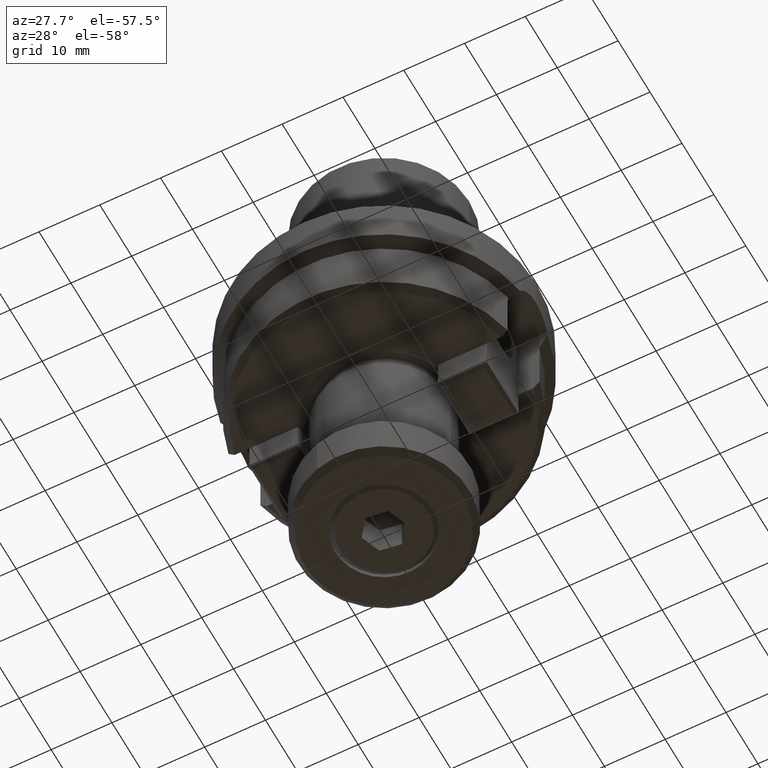
[diagram: clean part render]
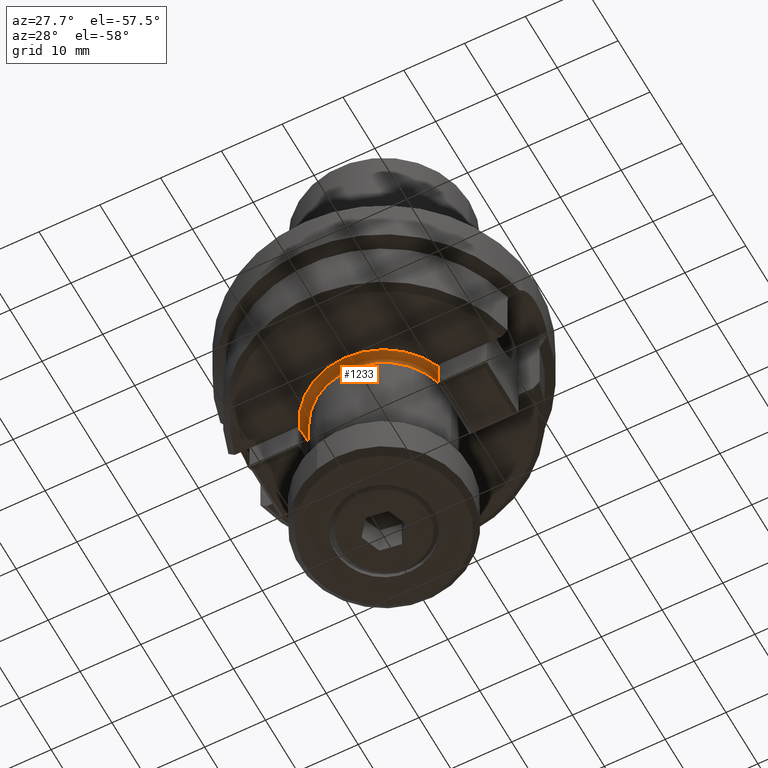
[diagram: same view with one face highlighted and labeled with its STEP entity id]
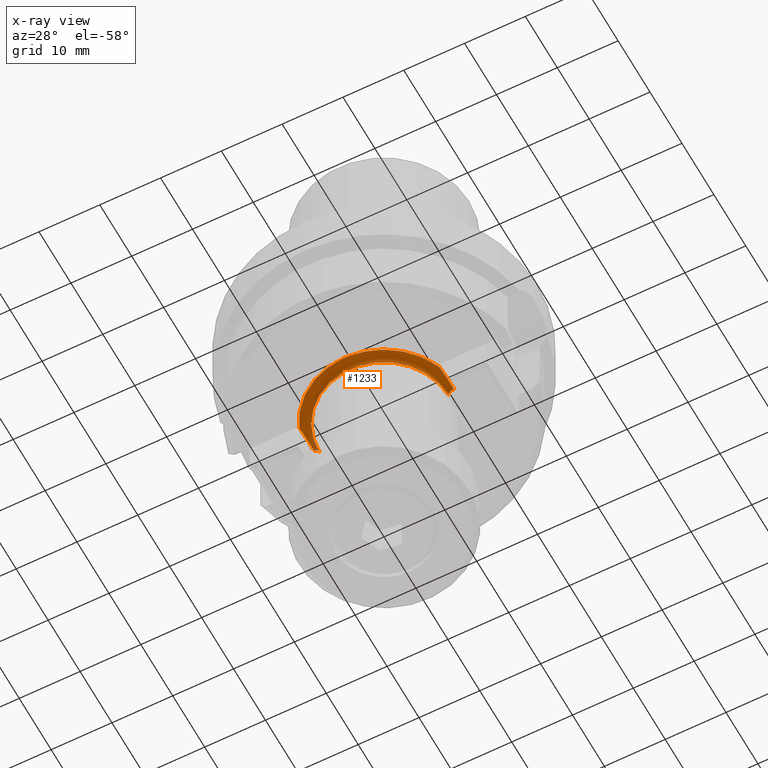
[diagram: x-ray of the same camera — body ghosted, the highlighted face saturated]
A machine part, auxiliary view. The second image highlights one B-rep face of the part: STEP entity #1233.
The next image is the same camera in x-ray: the body ghosted, the highlighted face saturated — about 2% of this face is hidden behind the body in this view.
In plain terms, the highlighted toroidal blend (fillet) surface has major radius 11.6 mm and minor (blend) radius 1 mm.
Its self-contained STEP definition (entity closure, byte-faithful):
#1233=ADVANCED_FACE('NONE',(#3382),#3383,.F.);
#1315=VERTEX_POINT('NONE',#3478);
#1681=EDGE_CURVE('NONE',#1691,#2775,#3892,.T.);
#1691=VERTEX_POINT('NONE',#3903);
#1971=EDGE_CURVE('NONE',#2775,#2507,#4206,.T.);
#2271=EDGE_CURVE('NONE',#1315,#3025,#4545,.T.);
#2397=EDGE_CURVE('NONE',#2507,#2461,#4693,.T.);
#2461=VERTEX_POINT('NONE',#4764);
#2507=VERTEX_POINT('NONE',#4814);
#2609=EDGE_CURVE('NONE',#1315,#1691,#4926,.T.);
#2647=EDGE_CURVE('NONE',#2461,#3025,#4970,.T.);
#2775=VERTEX_POINT('NONE',#5115);
#3025=VERTEX_POINT('NONE',#5390);
#3382=FACE_OUTER_BOUND('',#5846,.T.);
#3383=TOROIDAL_SURFACE('',#5847,11.6,0.999999999999998);
#3478=CARTESIAN_POINT('',(11.5,-1.92592994438724E-031,-19.6050125628934));
#3892=CIRCLE('',#6758,12.4);
#3903=CARTESIAN_POINT('',(11.5,-4.63788745012209,-20.0));
#4206=B_SPLINE_CURVE_WITH_KNOTS('',3,(#7322,#7323,#7324,#7325,#7326,#7327,#7328,#7329,#7330,#7331,#7332,#7333),.UNSPECIFIED.,.F.,.F.,(4,2,2,2,2,4),(0.0173831634281676,0.0179658847514512,0.0185486060747348,0.0197140487213019,0.020879491367869,0.0220449340144361),.UNSPECIFIED.);
#4545=CIRCLE('',#7902,0.999999999999997);
#4693=CIRCLE('',#8186,0.999999999999997);
#4764=CARTESIAN_POINT('',(-10.6,1.29808273505172E-015,-20.6));
#4814=CARTESIAN_POINT('',(-11.5,1.40829730689573E-015,-19.6050125628934));
#4926=B_SPLINE_CURVE_WITH_KNOTS('',3,(#8571,#8572,#8573,#8574,#8575,#8576,#8577,#8578,#8579,#8580,#8581,#8582),.UNSPECIFIED.,.F.,.F.,(4,2,2,2,2,4),(8.23099076521219E-021,0.00117191994837813,0.00234383989675626,0.00351575984513439,0.00410171981932346,0.00468767979351252),.UNSPECIFIED.);
#4970=CIRCLE('',#8656,10.6);
#5115=CARTESIAN_POINT('',(-11.5,-4.63788745012209,-20.0));
#5390=CARTESIAN_POINT('',(10.6,0.0,-20.6));
#5846=EDGE_LOOP('',(#9909,#9910,#9911,#9912,#9913,#9914));
#5847=AXIS2_PLACEMENT_3D('',#9915,#9916,#9917);
#6758=AXIS2_PLACEMENT_3D('',#10582,#10583,#10584);
#7322=CARTESIAN_POINT('',(-11.5,-4.63788745012209,-20.0));
#7323=CARTESIAN_POINT('',(-11.5,-4.46242089195049,-19.9124952528968));
#7324=CARTESIAN_POINT('',(-11.5,-4.27313343465916,-19.8506755967675));
#7325=CARTESIAN_POINT('',(-11.5,-3.89492095683518,-19.7548382208998));
#7326=CARTESIAN_POINT('',(-11.5,-3.7035565273126,-19.7206706234832));
#7327=CARTESIAN_POINT('',(-11.5,-3.12560449021797,-19.6416654049222));
#7328=CARTESIAN_POINT('',(-11.5,-2.73448572841437,-19.6200937942803));
#7329=CARTESIAN_POINT('',(-11.5,-1.95333299643596,-19.5986082095403));
#7330=CARTESIAN_POINT('',(-11.5,-1.56267145648676,-19.5992149191581));
#7331=CARTESIAN_POINT('',(-11.5,-0.781333425561612,-19.6024205753126));
#7332=CARTESIAN_POINT('',(-11.5,-0.388481155504664,-19.6050125628934));
#7333=CARTESIAN_POINT('',(-11.5,1.40829730689573E-015,-19.6050125628934));
#7902=AXIS2_PLACEMENT_3D('',#11352,#11353,#11354);
#8186=AXIS2_PLACEMENT_3D('',#11558,#11559,#11560);
#8571=CARTESIAN_POINT('',(11.5,-1.92592994438724E-031,-19.6050125628934));
#8572=CARTESIAN_POINT('',(11.5,-0.39064025762737,-19.6050125628934));
#8573=CARTESIAN_POINT('',(11.5,-0.781277441153869,-19.6024210365051));
#8574=CARTESIAN_POINT('',(11.5,-1.56255415356863,-19.5992151689763));
#8575=CARTESIAN_POINT('',(11.5,-1.95335146767651,-19.5986122573984));
#8576=CARTESIAN_POINT('',(11.5,-2.73412049966529,-19.6200802104381));
#8577=CARTESIAN_POINT('',(11.5,-3.12531574226718,-19.641590375121));
#8578=CARTESIAN_POINT('',(11.5,-3.70461970868891,-19.7208337803717));
#8579=CARTESIAN_POINT('',(11.5,-3.89633587053918,-19.7551134064511));
#8580=CARTESIAN_POINT('',(11.5,-4.27491816368801,-19.8512118937612));
#8581=CARTESIAN_POINT('',(11.5,-4.46299961464423,-19.9127838605006));
#8582=CARTESIAN_POINT('',(11.5,-4.63788745012209,-20.0));
#8656=AXIS2_PLACEMENT_3D('',#11831,#11832,#11833);
#9909=ORIENTED_EDGE('',*,*,#2397,.T.);
#9910=ORIENTED_EDGE('',*,*,#2647,.T.);
#9911=ORIENTED_EDGE('',*,*,#2271,.F.);
#9912=ORIENTED_EDGE('',*,*,#2609,.T.);
#9913=ORIENTED_EDGE('',*,*,#1681,.T.);
#9914=ORIENTED_EDGE('',*,*,#1971,.T.);
#9915=CARTESIAN_POINT('',(0.0,0.0,-20.6));
#9916=DIRECTION('',(0.0,0.0,1.0));
#9917=DIRECTION('',(1.0,0.0,0.0));
#10582=CARTESIAN_POINT('',(0.0,0.0,-20.0));
#10583=DIRECTION('',(0.0,0.0,-1.0));
#10584=DIRECTION('',(1.0,0.0,0.0));
#11352=CARTESIAN_POINT('',(11.6,0.0,-20.6));
#11353=DIRECTION('',(0.0,-1.0,0.0));
#11354=DIRECTION('',(-1.0,0.0,0.0));
#11558=CARTESIAN_POINT('',(-11.6,1.42054337043396E-015,-20.6));
#11559=DIRECTION('',(1.22460635382238E-016,1.0,0.0));
#11560=DIRECTION('',(1.0,-1.22460635382238E-016,0.0));
#11831=CARTESIAN_POINT('',(0.0,0.0,-20.6));
#11832=DIRECTION('',(0.0,0.0,1.0));
#11833=DIRECTION('',(1.0,0.0,0.0));